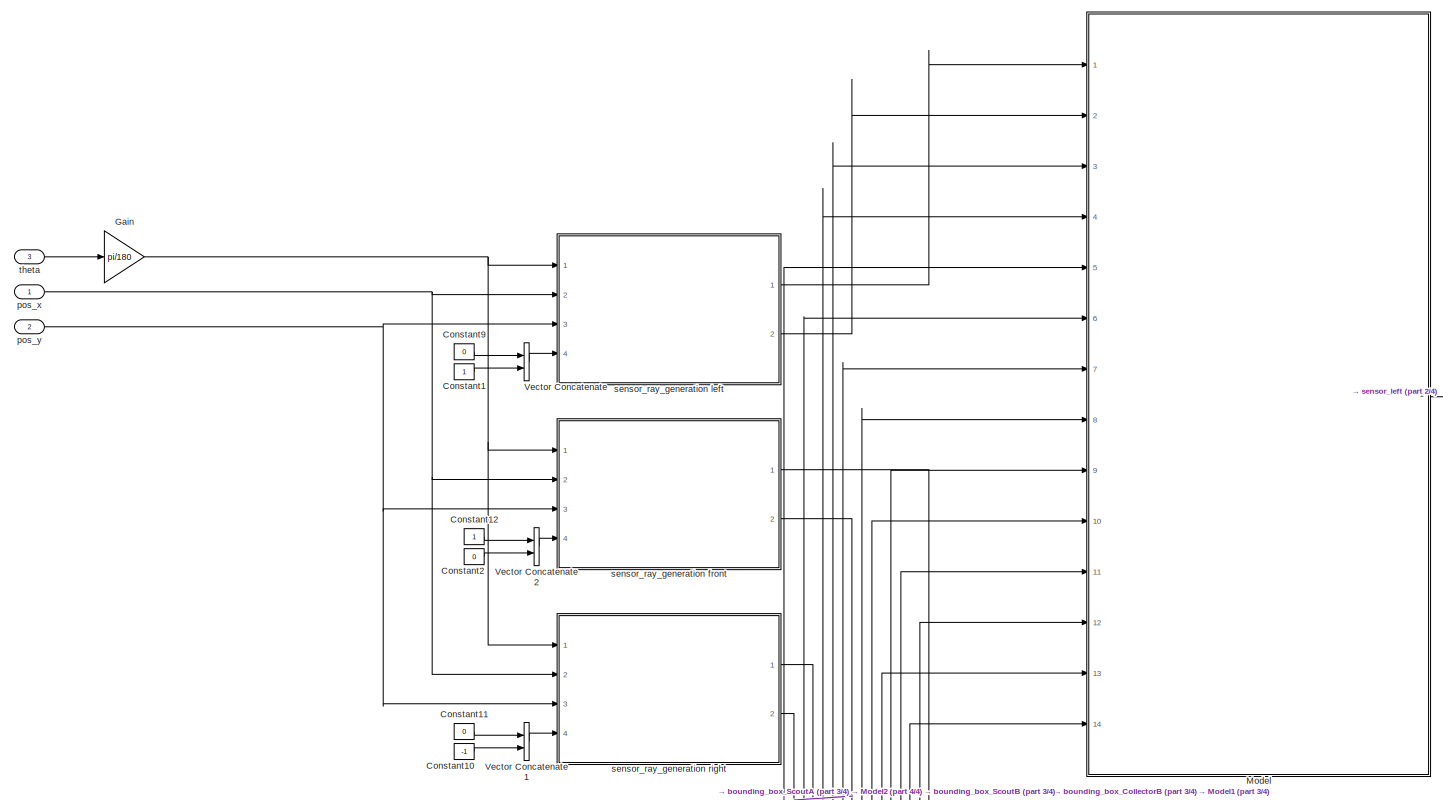
[diagram: root canvas - part 1/4, full width, top band]
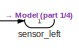
[diagram: root canvas - part 2/4, top right region]
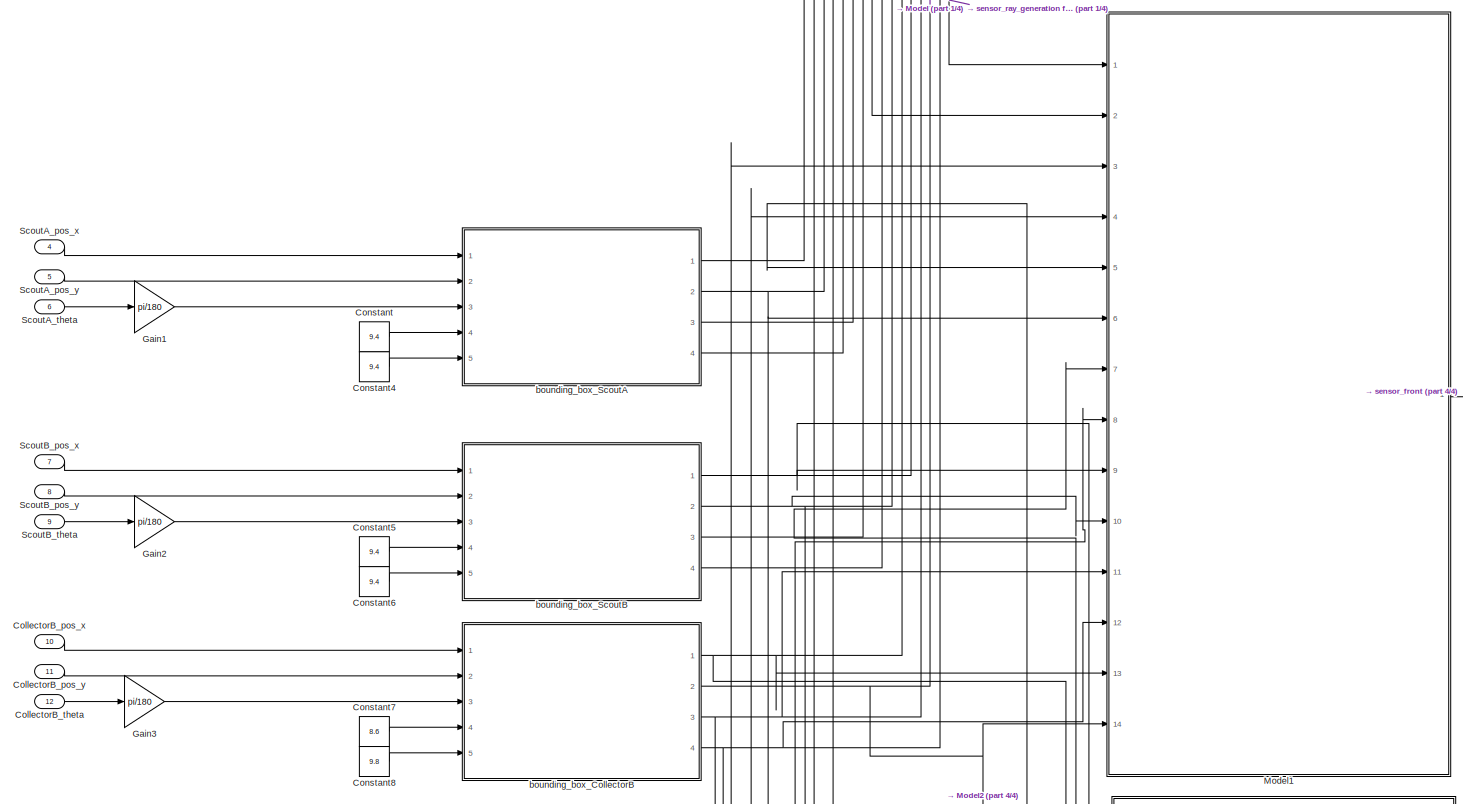
[diagram: root canvas - part 3/4, full width, middle band]
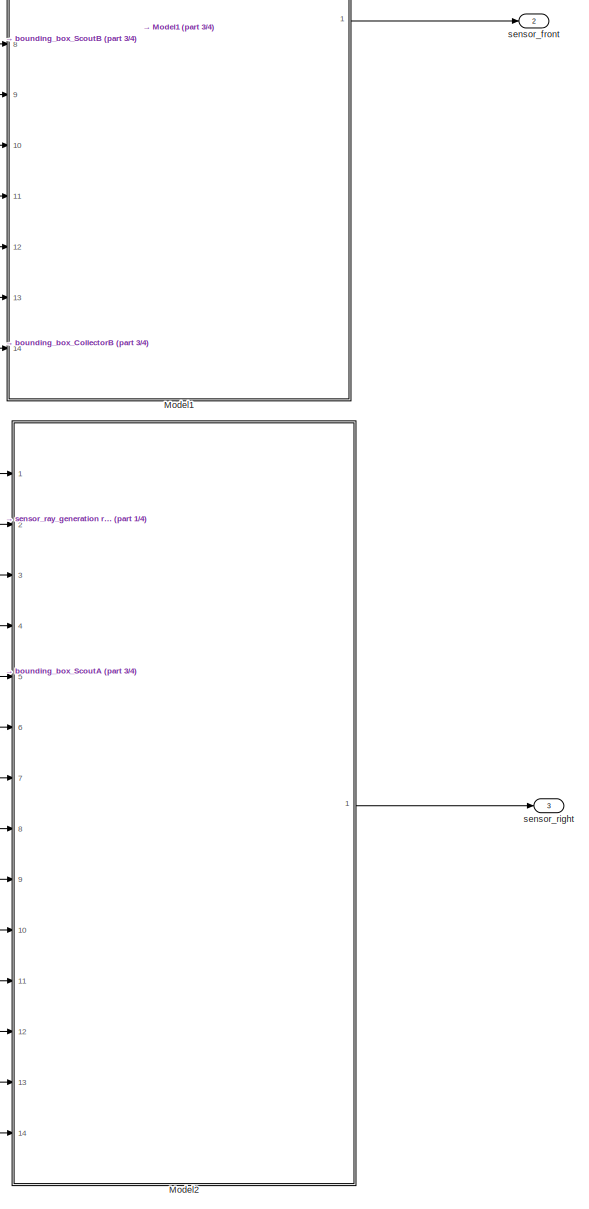
[diagram: root canvas - part 4/4, bottom right region]
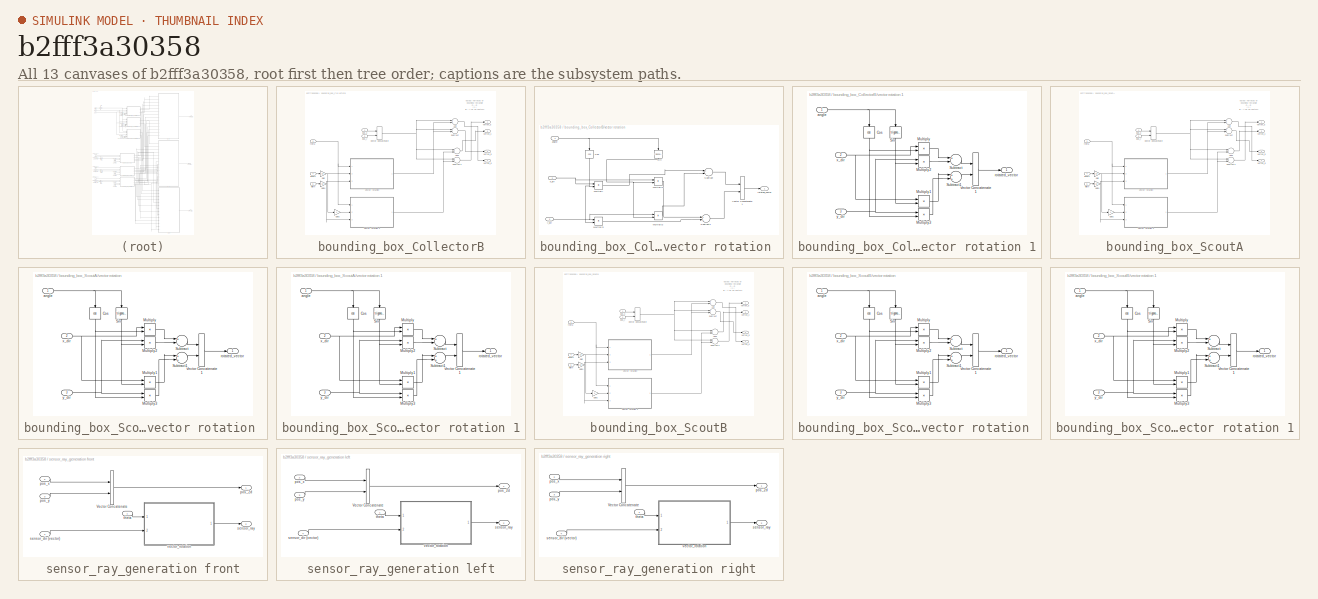
[diagram: thumbnail index - all 13 canvases of the model, root first then tree order]
MODEL slx_b2fff3a30358
KIND model
CONFIG AbsTol = auto
CONFIG EnableMultiTasking = off
CONFIG FixedStep = 0.01
CONFIG MaxStep = .001
CONFIG MinStep = auto
CONFIG RelTol = 1e-3
CONFIG SampleTimeConstraint = Unconstrained
CONFIG Solver = VariableStepAuto
CONFIG SolverName = VariableStepAuto
CONFIG StartTime = 0.0
CONFIG StopTime = 120
BLOCK [Inport] CollectorB_pos_x
  IconDisplay = Port number
  OutDataTypeStr = double
  Port = 10
  PortDimensions = 1
  SampleTime = 0
  SamplingMode = Sample based
  SignalType = real
BLOCK [Inport] CollectorB_pos_y
  IconDisplay = Port number
  OutDataTypeStr = double
  Port = 11
  PortDimensions = 1
  SampleTime = 0
  SamplingMode = Sample based
  SignalType = real
BLOCK [Inport] CollectorB_theta
  IconDisplay = Port number
  OutDataTypeStr = double
  Port = 12
  PortDimensions = 1
  SampleTime = 0
  SamplingMode = Sample based
  SignalType = real
BLOCK [Constant] Constant
  Value = 9.4
BLOCK [Constant] Constant1
BLOCK [Constant] Constant10
  Value = -1
BLOCK [Constant] Constant11
  Value = 0
BLOCK [Constant] Constant12
BLOCK [Constant] Constant2
  Value = 0
BLOCK [Constant] Constant4
  Value = 9.4
BLOCK [Constant] Constant5
  Value = 9.4
BLOCK [Constant] Constant6
  Value = 9.4
BLOCK [Constant] Constant7
  Value = 8.6
BLOCK [Constant] Constant8
  Value = 9.8
BLOCK [Constant] Constant9
  Value = 0
BLOCK [Gain] Gain
  Gain = pi/180
  OutDataTypeStr = Inherit: Inherit via internal rule
  ParamDataTypeStr = Inherit: Inherit via internal rule
  SaturateOnIntegerOverflow = off
BLOCK [Gain] Gain1
  Gain = pi/180
  OutDataTypeStr = Inherit: Inherit via internal rule
  ParamDataTypeStr = Inherit: Inherit via internal rule
  SaturateOnIntegerOverflow = off
BLOCK [Gain] Gain2
  Gain = pi/180
  OutDataTypeStr = Inherit: Inherit via internal rule
  ParamDataTypeStr = Inherit: Inherit via internal rule
  SaturateOnIntegerOverflow = off
BLOCK [Gain] Gain3
  Gain = pi/180
  OutDataTypeStr = Inherit: Inherit via internal rule
  ParamDataTypeStr = Inherit: Inherit via internal rule
  SaturateOnIntegerOverflow = off
BLOCK [ModelReference] Model
  ModelNameDialog = prox_sensor_gen
  ModelReferenceVersion = 1.2
  Ports = [14, 1]
BLOCK [ModelReference] Model1
  ModelNameDialog = prox_sensor_gen
  ModelReferenceVersion = 1.2
  Ports = [14, 1]
BLOCK [ModelReference] Model2
  ModelNameDialog = prox_sensor_gen
  ModelReferenceVersion = 1.2
  Ports = [14, 1]
BLOCK [Inport] ScoutA_pos_x
  IconDisplay = Port number
  OutDataTypeStr = double
  Port = 4
  PortDimensions = 1
  SampleTime = 0
  SamplingMode = Sample based
  SignalType = real
BLOCK [Inport] ScoutA_pos_y
  IconDisplay = Port number
  OutDataTypeStr = double
  Port = 5
  PortDimensions = 1
  SampleTime = 0
  SamplingMode = Sample based
  SignalType = real
BLOCK [Inport] ScoutA_theta
  IconDisplay = Port number
  OutDataTypeStr = double
  Port = 6
  PortDimensions = 1
  SampleTime = 0
  SamplingMode = Sample based
  SignalType = real
BLOCK [Inport] ScoutB_pos_x
  IconDisplay = Port number
  OutDataTypeStr = double
  Port = 7
  PortDimensions = 1
  SampleTime = 0
  SamplingMode = Sample based
  SignalType = real
BLOCK [Inport] ScoutB_pos_y
  IconDisplay = Port number
  OutDataTypeStr = double
  Port = 8
  PortDimensions = 1
  SampleTime = 0
  SamplingMode = Sample based
  SignalType = real
BLOCK [Inport] ScoutB_theta
  IconDisplay = Port number
  OutDataTypeStr = double
  Port = 9
  PortDimensions = 1
  SampleTime = 0
  SamplingMode = Sample based
  SignalType = real
BLOCK [Concatenate] Vector Concatenate
  Ports = [2, 1]
BLOCK [Concatenate] Vector Concatenate1
  Ports = [2, 1]
BLOCK [Concatenate] Vector Concatenate2
  Ports = [2, 1]
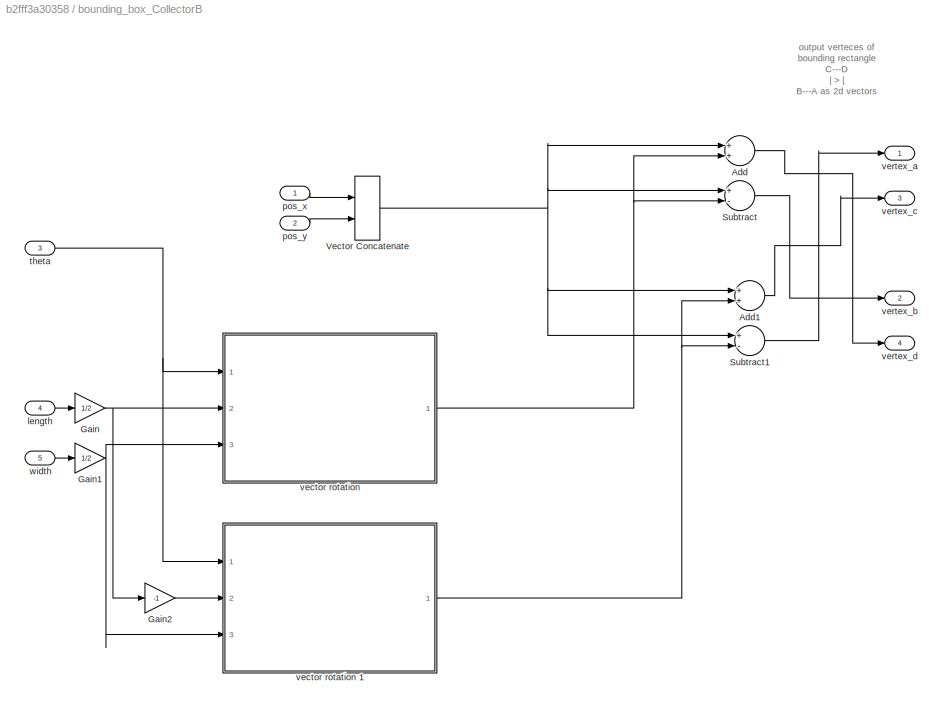
BLOCK [SubSystem] bounding_box_CollectorB
  Ports = [5, 4]
  RequestExecContextInheritance = off
BLOCK [Sum] bounding_box_CollectorB/Add
  InputSameDT = off
  OutDataTypeStr = Inherit: Inherit via internal rule
  Ports = [2, 1]
  SaturateOnIntegerOverflow = off
BLOCK [Sum] bounding_box_CollectorB/Add1
  InputSameDT = off
  OutDataTypeStr = Inherit: Inherit via internal rule
  Ports = [2, 1]
  SaturateOnIntegerOverflow = off
BLOCK [Gain] bounding_box_CollectorB/Gain
  Gain = 1/2
  OutDataTypeStr = Inherit: Inherit via internal rule
  ParamDataTypeStr = Inherit: Inherit via internal rule
  SaturateOnIntegerOverflow = off
BLOCK [Gain] bounding_box_CollectorB/Gain1
  Gain = 1/2
  OutDataTypeStr = Inherit: Inherit via internal rule
  ParamDataTypeStr = Inherit: Inherit via internal rule
  SaturateOnIntegerOverflow = off
BLOCK [Gain] bounding_box_CollectorB/Gain2
  Gain = -1
  OutDataTypeStr = Inherit: Inherit via internal rule
  ParamDataTypeStr = Inherit: Inherit via internal rule
  SaturateOnIntegerOverflow = off
BLOCK [Sum] bounding_box_CollectorB/Subtract
  InputSameDT = off
  Inputs = +-
  OutDataTypeStr = Inherit: Inherit via internal rule
  Ports = [2, 1]
  SaturateOnIntegerOverflow = off
BLOCK [Sum] bounding_box_CollectorB/Subtract1
  InputSameDT = off
  Inputs = +-
  OutDataTypeStr = Inherit: Inherit via internal rule
  Ports = [2, 1]
  SaturateOnIntegerOverflow = off
BLOCK [Concatenate] bounding_box_CollectorB/Vector Concatenate
  Ports = [2, 1]
BLOCK [Inport] bounding_box_CollectorB/length
  IconDisplay = Port number
  Port = 4
BLOCK [Inport] bounding_box_CollectorB/pos_x
  IconDisplay = Port number
BLOCK [Inport] bounding_box_CollectorB/pos_y
  IconDisplay = Port number
  Port = 2
BLOCK [Inport] bounding_box_CollectorB/theta
  IconDisplay = Port number
  Port = 3
BLOCK [SubSystem] bounding_box_CollectorB/vector rotation 
  Ports = [3, 1]
  RequestExecContextInheritance = off
BLOCK [Trigonometry] bounding_box_CollectorB/vector rotation /Cos
  Operator = cos
  Ports = [1, 1]
BLOCK [Product] bounding_box_CollectorB/vector rotation /Multiply
  InputSameDT = off
  OutDataTypeStr = Inherit: Inherit via internal rule
  Ports = [2, 1]
  RndMeth = Floor
  SaturateOnIntegerOverflow = off
BLOCK [Product] bounding_box_CollectorB/vector rotation /Multiply1
  InputSameDT = off
  OutDataTypeStr = Inherit: Inherit via internal rule
  Ports = [2, 1]
  RndMeth = Floor
  SaturateOnIntegerOverflow = off
BLOCK [Product] bounding_box_CollectorB/vector rotation /Multiply2
  InputSameDT = off
  OutDataTypeStr = Inherit: Inherit via internal rule
  Ports = [2, 1]
  RndMeth = Floor
  SaturateOnIntegerOverflow = off
BLOCK [Product] bounding_box_CollectorB/vector rotation /Multiply3
  InputSameDT = off
  OutDataTypeStr = Inherit: Inherit via internal rule
  Ports = [2, 1]
  RndMeth = Floor
  SaturateOnIntegerOverflow = off
BLOCK [Trigonometry] bounding_box_CollectorB/vector rotation /Sin
  Ports = [1, 1]
BLOCK [Sum] bounding_box_CollectorB/vector rotation /Subtract
  InputSameDT = off
  Inputs = +-
  OutDataTypeStr = Inherit: Inherit via internal rule
  Ports = [2, 1]
  SaturateOnIntegerOverflow = off
BLOCK [Sum] bounding_box_CollectorB/vector rotation /Subtract1
  InputSameDT = off
  OutDataTypeStr = Inherit: Inherit via internal rule
  Ports = [2, 1]
  SaturateOnIntegerOverflow = off
BLOCK [Concatenate] bounding_box_CollectorB/vector rotation /Vector Concatenate1
  Ports = [2, 1]
BLOCK [Inport] bounding_box_CollectorB/vector rotation /angle
  IconDisplay = Port number
BLOCK [Outport] bounding_box_CollectorB/vector rotation /rotated_vector 
  IconDisplay = Port number
BLOCK [Inport] bounding_box_CollectorB/vector rotation /x_dir
  IconDisplay = Port number
  Port = 2
BLOCK [Inport] bounding_box_CollectorB/vector rotation /y_dir
  IconDisplay = Port number
  Port = 3
BLOCK [SubSystem] bounding_box_CollectorB/vector rotation 1
  Ports = [3, 1]
  RequestExecContextInheritance = off
BLOCK [Trigonometry] bounding_box_CollectorB/vector rotation 1/Cos
  Operator = cos
  Ports = [1, 1]
BLOCK [Product] bounding_box_CollectorB/vector rotation 1/Multiply
  InputSameDT = off
  OutDataTypeStr = Inherit: Inherit via internal rule
  Ports = [2, 1]
  RndMeth = Floor
  SaturateOnIntegerOverflow = off
BLOCK [Product] bounding_box_CollectorB/vector rotation 1/Multiply1
  InputSameDT = off
  OutDataTypeStr = Inherit: Inherit via internal rule
  Ports = [2, 1]
  RndMeth = Floor
  SaturateOnIntegerOverflow = off
BLOCK [Product] bounding_box_CollectorB/vector rotation 1/Multiply2
  InputSameDT = off
  OutDataTypeStr = Inherit: Inherit via internal rule
  Ports = [2, 1]
  RndMeth = Floor
  SaturateOnIntegerOverflow = off
BLOCK [Product] bounding_box_CollectorB/vector rotation 1/Multiply3
  InputSameDT = off
  OutDataTypeStr = Inherit: Inherit via internal rule
  Ports = [2, 1]
  RndMeth = Floor
  SaturateOnIntegerOverflow = off
BLOCK [Trigonometry] bounding_box_CollectorB/vector rotation 1/Sin
  Ports = [1, 1]
BLOCK [Sum] bounding_box_CollectorB/vector rotation 1/Subtract
  InputSameDT = off
  Inputs = +-
  OutDataTypeStr = Inherit: Inherit via internal rule
  Ports = [2, 1]
  SaturateOnIntegerOverflow = off
BLOCK [Sum] bounding_box_CollectorB/vector rotation 1/Subtract1
  InputSameDT = off
  OutDataTypeStr = Inherit: Inherit via internal rule
  Ports = [2, 1]
  SaturateOnIntegerOverflow = off
BLOCK [Concatenate] bounding_box_CollectorB/vector rotation 1/Vector Concatenate1
  Ports = [2, 1]
BLOCK [Inport] bounding_box_CollectorB/vector rotation 1/angle
  IconDisplay = Port number
BLOCK [Outport] bounding_box_CollectorB/vector rotation 1/rotated_vector 
  IconDisplay = Port number
BLOCK [Inport] bounding_box_CollectorB/vector rotation 1/x_dir
  IconDisplay = Port number
  Port = 2
BLOCK [Inport] bounding_box_CollectorB/vector rotation 1/y_dir
  IconDisplay = Port number
  Port = 3
BLOCK [Outport] bounding_box_CollectorB/vertex_a
  IconDisplay = Port number
BLOCK [Outport] bounding_box_CollectorB/vertex_b
  IconDisplay = Port number
  Port = 2
BLOCK [Outport] bounding_box_CollectorB/vertex_c
  IconDisplay = Port number
  Port = 3
BLOCK [Outport] bounding_box_CollectorB/vertex_d
  IconDisplay = Port number
  Port = 4
BLOCK [Inport] bounding_box_CollectorB/width
  IconDisplay = Port number
  Port = 5
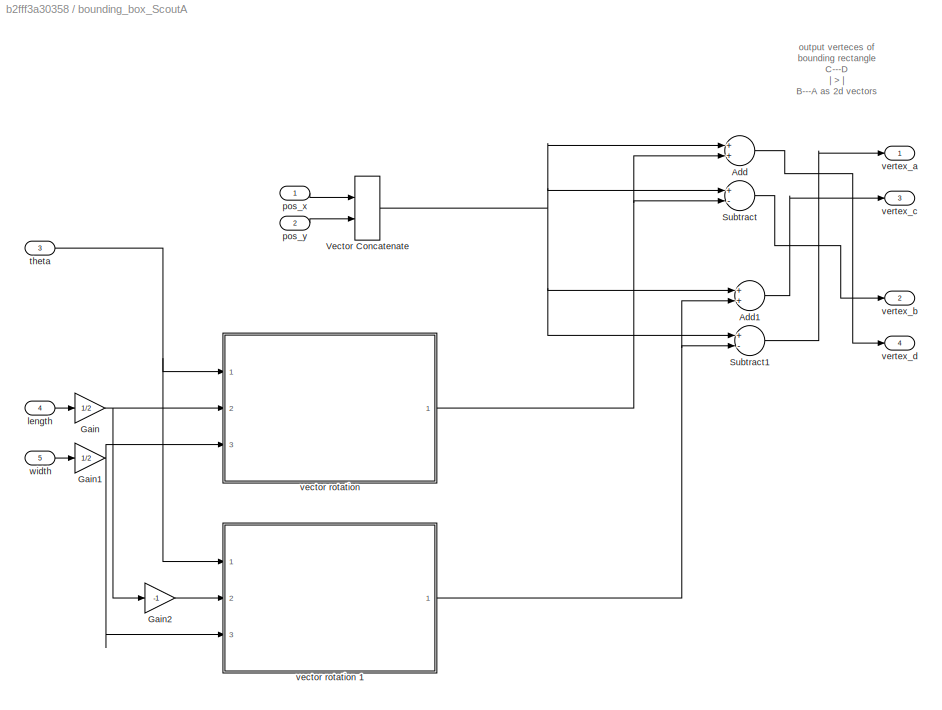
BLOCK [SubSystem] bounding_box_ScoutA
  Ports = [5, 4]
  RequestExecContextInheritance = off
BLOCK [Sum] bounding_box_ScoutA/Add
  InputSameDT = off
  OutDataTypeStr = Inherit: Inherit via internal rule
  Ports = [2, 1]
  SaturateOnIntegerOverflow = off
BLOCK [Sum] bounding_box_ScoutA/Add1
  InputSameDT = off
  OutDataTypeStr = Inherit: Inherit via internal rule
  Ports = [2, 1]
  SaturateOnIntegerOverflow = off
BLOCK [Gain] bounding_box_ScoutA/Gain
  Gain = 1/2
  OutDataTypeStr = Inherit: Inherit via internal rule
  ParamDataTypeStr = Inherit: Inherit via internal rule
  SaturateOnIntegerOverflow = off
BLOCK [Gain] bounding_box_ScoutA/Gain1
  Gain = 1/2
  OutDataTypeStr = Inherit: Inherit via internal rule
  ParamDataTypeStr = Inherit: Inherit via internal rule
  SaturateOnIntegerOverflow = off
BLOCK [Gain] bounding_box_ScoutA/Gain2
  Gain = -1
  OutDataTypeStr = Inherit: Inherit via internal rule
  ParamDataTypeStr = Inherit: Inherit via internal rule
  SaturateOnIntegerOverflow = off
BLOCK [Sum] bounding_box_ScoutA/Subtract
  InputSameDT = off
  Inputs = +-
  OutDataTypeStr = Inherit: Inherit via internal rule
  Ports = [2, 1]
  SaturateOnIntegerOverflow = off
BLOCK [Sum] bounding_box_ScoutA/Subtract1
  InputSameDT = off
  Inputs = +-
  OutDataTypeStr = Inherit: Inherit via internal rule
  Ports = [2, 1]
  SaturateOnIntegerOverflow = off
BLOCK [Concatenate] bounding_box_ScoutA/Vector Concatenate
  Ports = [2, 1]
BLOCK [Inport] bounding_box_ScoutA/length
  IconDisplay = Port number
  Port = 4
BLOCK [Inport] bounding_box_ScoutA/pos_x
  IconDisplay = Port number
BLOCK [Inport] bounding_box_ScoutA/pos_y
  IconDisplay = Port number
  Port = 2
BLOCK [Inport] bounding_box_ScoutA/theta
  IconDisplay = Port number
  Port = 3
BLOCK [SubSystem] bounding_box_ScoutA/vector rotation 
  Ports = [3, 1]
  RequestExecContextInheritance = off
BLOCK [Trigonometry] bounding_box_ScoutA/vector rotation /Cos
  Operator = cos
  Ports = [1, 1]
BLOCK [Product] bounding_box_ScoutA/vector rotation /Multiply
  InputSameDT = off
  OutDataTypeStr = Inherit: Inherit via internal rule
  Ports = [2, 1]
  RndMeth = Floor
  SaturateOnIntegerOverflow = off
BLOCK [Product] bounding_box_ScoutA/vector rotation /Multiply1
  InputSameDT = off
  OutDataTypeStr = Inherit: Inherit via internal rule
  Ports = [2, 1]
  RndMeth = Floor
  SaturateOnIntegerOverflow = off
BLOCK [Product] bounding_box_ScoutA/vector rotation /Multiply2
  InputSameDT = off
  OutDataTypeStr = Inherit: Inherit via internal rule
  Ports = [2, 1]
  RndMeth = Floor
  SaturateOnIntegerOverflow = off
BLOCK [Product] bounding_box_ScoutA/vector rotation /Multiply3
  InputSameDT = off
  OutDataTypeStr = Inherit: Inherit via internal rule
  Ports = [2, 1]
  RndMeth = Floor
  SaturateOnIntegerOverflow = off
BLOCK [Trigonometry] bounding_box_ScoutA/vector rotation /Sin
  Ports = [1, 1]
BLOCK [Sum] bounding_box_ScoutA/vector rotation /Subtract
  InputSameDT = off
  Inputs = +-
  OutDataTypeStr = Inherit: Inherit via internal rule
  Ports = [2, 1]
  SaturateOnIntegerOverflow = off
BLOCK [Sum] bounding_box_ScoutA/vector rotation /Subtract1
  InputSameDT = off
  OutDataTypeStr = Inherit: Inherit via internal rule
  Ports = [2, 1]
  SaturateOnIntegerOverflow = off
BLOCK [Concatenate] bounding_box_ScoutA/vector rotation /Vector Concatenate1
  Ports = [2, 1]
BLOCK [Inport] bounding_box_ScoutA/vector rotation /angle
  IconDisplay = Port number
BLOCK [Outport] bounding_box_ScoutA/vector rotation /rotated_vector 
  IconDisplay = Port number
BLOCK [Inport] bounding_box_ScoutA/vector rotation /x_dir
  IconDisplay = Port number
  Port = 2
BLOCK [Inport] bounding_box_ScoutA/vector rotation /y_dir
  IconDisplay = Port number
  Port = 3
BLOCK [SubSystem] bounding_box_ScoutA/vector rotation 1
  Ports = [3, 1]
  RequestExecContextInheritance = off
BLOCK [Trigonometry] bounding_box_ScoutA/vector rotation 1/Cos
  Operator = cos
  Ports = [1, 1]
BLOCK [Product] bounding_box_ScoutA/vector rotation 1/Multiply
  InputSameDT = off
  OutDataTypeStr = Inherit: Inherit via internal rule
  Ports = [2, 1]
  RndMeth = Floor
  SaturateOnIntegerOverflow = off
BLOCK [Product] bounding_box_ScoutA/vector rotation 1/Multiply1
  InputSameDT = off
  OutDataTypeStr = Inherit: Inherit via internal rule
  Ports = [2, 1]
  RndMeth = Floor
  SaturateOnIntegerOverflow = off
BLOCK [Product] bounding_box_ScoutA/vector rotation 1/Multiply2
  InputSameDT = off
  OutDataTypeStr = Inherit: Inherit via internal rule
  Ports = [2, 1]
  RndMeth = Floor
  SaturateOnIntegerOverflow = off
BLOCK [Product] bounding_box_ScoutA/vector rotation 1/Multiply3
  InputSameDT = off
  OutDataTypeStr = Inherit: Inherit via internal rule
  Ports = [2, 1]
  RndMeth = Floor
  SaturateOnIntegerOverflow = off
BLOCK [Trigonometry] bounding_box_ScoutA/vector rotation 1/Sin
  Ports = [1, 1]
BLOCK [Sum] bounding_box_ScoutA/vector rotation 1/Subtract
  InputSameDT = off
  Inputs = +-
  OutDataTypeStr = Inherit: Inherit via internal rule
  Ports = [2, 1]
  SaturateOnIntegerOverflow = off
BLOCK [Sum] bounding_box_ScoutA/vector rotation 1/Subtract1
  InputSameDT = off
  OutDataTypeStr = Inherit: Inherit via internal rule
  Ports = [2, 1]
  SaturateOnIntegerOverflow = off
BLOCK [Concatenate] bounding_box_ScoutA/vector rotation 1/Vector Concatenate1
  Ports = [2, 1]
BLOCK [Inport] bounding_box_ScoutA/vector rotation 1/angle
  IconDisplay = Port number
BLOCK [Outport] bounding_box_ScoutA/vector rotation 1/rotated_vector 
  IconDisplay = Port number
BLOCK [Inport] bounding_box_ScoutA/vector rotation 1/x_dir
  IconDisplay = Port number
  Port = 2
BLOCK [Inport] bounding_box_ScoutA/vector rotation 1/y_dir
  IconDisplay = Port number
  Port = 3
BLOCK [Outport] bounding_box_ScoutA/vertex_a
  IconDisplay = Port number
BLOCK [Outport] bounding_box_ScoutA/vertex_b
  IconDisplay = Port number
  Port = 2
BLOCK [Outport] bounding_box_ScoutA/vertex_c
  IconDisplay = Port number
  Port = 3
BLOCK [Outport] bounding_box_ScoutA/vertex_d
  IconDisplay = Port number
  Port = 4
BLOCK [Inport] bounding_box_ScoutA/width
  IconDisplay = Port number
  Port = 5
BLOCK [SubSystem] bounding_box_ScoutB
  Ports = [5, 4]
  RequestExecContextInheritance = off
BLOCK [Sum] bounding_box_ScoutB/Add
  InputSameDT = off
  OutDataTypeStr = Inherit: Inherit via internal rule
  Ports = [2, 1]
  SaturateOnIntegerOverflow = off
BLOCK [Sum] bounding_box_ScoutB/Add1
  InputSameDT = off
  OutDataTypeStr = Inherit: Inherit via internal rule
  Ports = [2, 1]
  SaturateOnIntegerOverflow = off
BLOCK [Gain] bounding_box_ScoutB/Gain
  Gain = 1/2
  OutDataTypeStr = Inherit: Inherit via internal rule
  ParamDataTypeStr = Inherit: Inherit via internal rule
  SaturateOnIntegerOverflow = off
BLOCK [Gain] bounding_box_ScoutB/Gain1
  Gain = 1/2
  OutDataTypeStr = Inherit: Inherit via internal rule
  ParamDataTypeStr = Inherit: Inherit via internal rule
  SaturateOnIntegerOverflow = off
BLOCK [Gain] bounding_box_ScoutB/Gain2
  Gain = -1
  OutDataTypeStr = Inherit: Inherit via internal rule
  ParamDataTypeStr = Inherit: Inherit via internal rule
  SaturateOnIntegerOverflow = off
BLOCK [Sum] bounding_box_ScoutB/Subtract
  InputSameDT = off
  Inputs = +-
  OutDataTypeStr = Inherit: Inherit via internal rule
  Ports = [2, 1]
  SaturateOnIntegerOverflow = off
BLOCK [Sum] bounding_box_ScoutB/Subtract1
  InputSameDT = off
  Inputs = +-
  OutDataTypeStr = Inherit: Inherit via internal rule
  Ports = [2, 1]
  SaturateOnIntegerOverflow = off
BLOCK [Concatenate] bounding_box_ScoutB/Vector Concatenate
  Ports = [2, 1]
BLOCK [Inport] bounding_box_ScoutB/length
  IconDisplay = Port number
  Port = 4
BLOCK [Inport] bounding_box_ScoutB/pos_x
  IconDisplay = Port number
BLOCK [Inport] bounding_box_ScoutB/pos_y
  IconDisplay = Port number
  Port = 2
BLOCK [Inport] bounding_box_ScoutB/theta
  IconDisplay = Port number
  Port = 3
BLOCK [SubSystem] bounding_box_ScoutB/vector rotation 
  Ports = [3, 1]
  RequestExecContextInheritance = off
BLOCK [Trigonometry] bounding_box_ScoutB/vector rotation /Cos
  Operator = cos
  Ports = [1, 1]
BLOCK [Product] bounding_box_ScoutB/vector rotation /Multiply
  InputSameDT = off
  OutDataTypeStr = Inherit: Inherit via internal rule
  Ports = [2, 1]
  RndMeth = Floor
  SaturateOnIntegerOverflow = off
BLOCK [Product] bounding_box_ScoutB/vector rotation /Multiply1
  InputSameDT = off
  OutDataTypeStr = Inherit: Inherit via internal rule
  Ports = [2, 1]
  RndMeth = Floor
  SaturateOnIntegerOverflow = off
BLOCK [Product] bounding_box_ScoutB/vector rotation /Multiply2
  InputSameDT = off
  OutDataTypeStr = Inherit: Inherit via internal rule
  Ports = [2, 1]
  RndMeth = Floor
  SaturateOnIntegerOverflow = off
BLOCK [Product] bounding_box_ScoutB/vector rotation /Multiply3
  InputSameDT = off
  OutDataTypeStr = Inherit: Inherit via internal rule
  Ports = [2, 1]
  RndMeth = Floor
  SaturateOnIntegerOverflow = off
BLOCK [Trigonometry] bounding_box_ScoutB/vector rotation /Sin
  Ports = [1, 1]
BLOCK [Sum] bounding_box_ScoutB/vector rotation /Subtract
  InputSameDT = off
  Inputs = +-
  OutDataTypeStr = Inherit: Inherit via internal rule
  Ports = [2, 1]
  SaturateOnIntegerOverflow = off
BLOCK [Sum] bounding_box_ScoutB/vector rotation /Subtract1
  InputSameDT = off
  OutDataTypeStr = Inherit: Inherit via internal rule
  Ports = [2, 1]
  SaturateOnIntegerOverflow = off
BLOCK [Concatenate] bounding_box_ScoutB/vector rotation /Vector Concatenate1
  Ports = [2, 1]
BLOCK [Inport] bounding_box_ScoutB/vector rotation /angle
  IconDisplay = Port number
BLOCK [Outport] bounding_box_ScoutB/vector rotation /rotated_vector 
  IconDisplay = Port number
BLOCK [Inport] bounding_box_ScoutB/vector rotation /x_dir
  IconDisplay = Port number
  Port = 2
BLOCK [Inport] bounding_box_ScoutB/vector rotation /y_dir
  IconDisplay = Port number
  Port = 3
BLOCK [SubSystem] bounding_box_ScoutB/vector rotation 1
  Ports = [3, 1]
  RequestExecContextInheritance = off
BLOCK [Trigonometry] bounding_box_ScoutB/vector rotation 1/Cos
  Operator = cos
  Ports = [1, 1]
BLOCK [Product] bounding_box_ScoutB/vector rotation 1/Multiply
  InputSameDT = off
  OutDataTypeStr = Inherit: Inherit via internal rule
  Ports = [2, 1]
  RndMeth = Floor
  SaturateOnIntegerOverflow = off
BLOCK [Product] bounding_box_ScoutB/vector rotation 1/Multiply1
  InputSameDT = off
  OutDataTypeStr = Inherit: Inherit via internal rule
  Ports = [2, 1]
  RndMeth = Floor
  SaturateOnIntegerOverflow = off
BLOCK [Product] bounding_box_ScoutB/vector rotation 1/Multiply2
  InputSameDT = off
  OutDataTypeStr = Inherit: Inherit via internal rule
  Ports = [2, 1]
  RndMeth = Floor
  SaturateOnIntegerOverflow = off
BLOCK [Product] bounding_box_ScoutB/vector rotation 1/Multiply3
  InputSameDT = off
  OutDataTypeStr = Inherit: Inherit via internal rule
  Ports = [2, 1]
  RndMeth = Floor
  SaturateOnIntegerOverflow = off
BLOCK [Trigonometry] bounding_box_ScoutB/vector rotation 1/Sin
  Ports = [1, 1]
BLOCK [Sum] bounding_box_ScoutB/vector rotation 1/Subtract
  InputSameDT = off
  Inputs = +-
  OutDataTypeStr = Inherit: Inherit via internal rule
  Ports = [2, 1]
  SaturateOnIntegerOverflow = off
BLOCK [Sum] bounding_box_ScoutB/vector rotation 1/Subtract1
  InputSameDT = off
  OutDataTypeStr = Inherit: Inherit via internal rule
  Ports = [2, 1]
  SaturateOnIntegerOverflow = off
BLOCK [Concatenate] bounding_box_ScoutB/vector rotation 1/Vector Concatenate1
  Ports = [2, 1]
BLOCK [Inport] bounding_box_ScoutB/vector rotation 1/angle
  IconDisplay = Port number
BLOCK [Outport] bounding_box_ScoutB/vector rotation 1/rotated_vector 
  IconDisplay = Port number
BLOCK [Inport] bounding_box_ScoutB/vector rotation 1/x_dir
  IconDisplay = Port number
  Port = 2
BLOCK [Inport] bounding_box_ScoutB/vector rotation 1/y_dir
  IconDisplay = Port number
  Port = 3
BLOCK [Outport] bounding_box_ScoutB/vertex_a
  IconDisplay = Port number
BLOCK [Outport] bounding_box_ScoutB/vertex_b
  IconDisplay = Port number
  Port = 2
BLOCK [Outport] bounding_box_ScoutB/vertex_c
  IconDisplay = Port number
  Port = 3
BLOCK [Outport] bounding_box_ScoutB/vertex_d
  IconDisplay = Port number
  Port = 4
BLOCK [Inport] bounding_box_ScoutB/width
  IconDisplay = Port number
  Port = 5
BLOCK [Inport] pos_x
  IconDisplay = Port number
  OutDataTypeStr = double
  PortDimensions = 1
  SampleTime = 0
  SamplingMode = Sample based
  SignalType = real
BLOCK [Inport] pos_y
  IconDisplay = Port number
  OutDataTypeStr = double
  Port = 2
  PortDimensions = 1
  SampleTime = 0
  SamplingMode = Sample based
  SignalType = real
BLOCK [Outport] sensor_front
  IconDisplay = Port number
  OutDataTypeStr = double
  Port = 2
  PortDimensions = 1
  SampleTime = 0
  SamplingMode = Sample based
  SignalType = real
BLOCK [Outport] sensor_left
  IconDisplay = Port number
  OutDataTypeStr = double
  PortDimensions = 1
  SampleTime = 0
  SamplingMode = Sample based
  SignalType = real
BLOCK [SubSystem] sensor_ray_generation front
  Ports = [4, 2]
  RequestExecContextInheritance = off
BLOCK [Concatenate] sensor_ray_generation front/Vector Concatenate
  Ports = [2, 1]
BLOCK [Outport] sensor_ray_generation front/pos_2d
  IconDisplay = Port number
BLOCK [Inport] sensor_ray_generation front/pos_x
  IconDisplay = Port number
  Port = 2
BLOCK [Inport] sensor_ray_generation front/pos_y
  IconDisplay = Port number
  Port = 3
BLOCK [Inport] sensor_ray_generation front/sensor_dir (vector) 
  IconDisplay = Port number
  Port = 4
BLOCK [Outport] sensor_ray_generation front/sensor_ray 
  IconDisplay = Port number
  Port = 2
BLOCK [Inport] sensor_ray_generation front/theta 
  IconDisplay = Port number
BLOCK [ModelReference] sensor_ray_generation front/vector_rotation
  ModelNameDialog = vector_rotation
  ModelReferenceVersion = 1.21
  Ports = [2, 1]
BLOCK [SubSystem] sensor_ray_generation left
  Ports = [4, 2]
  RequestExecContextInheritance = off
BLOCK [Concatenate] sensor_ray_generation left/Vector Concatenate
  Ports = [2, 1]
BLOCK [Outport] sensor_ray_generation left/pos_2d
  IconDisplay = Port number
BLOCK [Inport] sensor_ray_generation left/pos_x
  IconDisplay = Port number
  Port = 2
BLOCK [Inport] sensor_ray_generation left/pos_y
  IconDisplay = Port number
  Port = 3
BLOCK [Inport] sensor_ray_generation left/sensor_dir (vector) 
  IconDisplay = Port number
  Port = 4
BLOCK [Outport] sensor_ray_generation left/sensor_ray 
  IconDisplay = Port number
  Port = 2
BLOCK [Inport] sensor_ray_generation left/theta 
  IconDisplay = Port number
BLOCK [ModelReference] sensor_ray_generation left/vector_rotation
  ModelNameDialog = vector_rotation
  ModelReferenceVersion = 1.21
  Ports = [2, 1]
BLOCK [SubSystem] sensor_ray_generation right
  Ports = [4, 2]
  RequestExecContextInheritance = off
BLOCK [Concatenate] sensor_ray_generation right/Vector Concatenate
  Ports = [2, 1]
BLOCK [Outport] sensor_ray_generation right/pos_2d
  IconDisplay = Port number
BLOCK [Inport] sensor_ray_generation right/pos_x
  IconDisplay = Port number
  Port = 2
BLOCK [Inport] sensor_ray_generation right/pos_y
  IconDisplay = Port number
  Port = 3
BLOCK [Inport] sensor_ray_generation right/sensor_dir (vector) 
  IconDisplay = Port number
  Port = 4
BLOCK [Outport] sensor_ray_generation right/sensor_ray 
  IconDisplay = Port number
  Port = 2
BLOCK [Inport] sensor_ray_generation right/theta 
  IconDisplay = Port number
BLOCK [ModelReference] sensor_ray_generation right/vector_rotation
  ModelNameDialog = vector_rotation
  ModelReferenceVersion = 1.21
  Ports = [2, 1]
BLOCK [Outport] sensor_right 
  IconDisplay = Port number
  OutDataTypeStr = double
  Port = 3
  PortDimensions = 1
  SampleTime = 0
  SamplingMode = Sample based
  SignalType = real
BLOCK [Inport] theta
  IconDisplay = Port number
  OutDataTypeStr = double
  Port = 3
  PortDimensions = 1
  SampleTime = 0
  SamplingMode = Sample based
  SignalType = real
ANNOTATION bounding_box_CollectorB: output verteces of bounding rectangle C---D | > | B---A as 2d vectors
ANNOTATION bounding_box_ScoutA: output verteces of bounding rectangle C---D | > | B---A as 2d vectors
ANNOTATION bounding_box_ScoutB: output verteces of bounding rectangle C---D | > | B---A as 2d vectors
LINE CollectorB_pos_x:1 -> bounding_box_CollectorB:1
LINE CollectorB_pos_y:1 -> bounding_box_CollectorB:2
LINE CollectorB_theta:1 -> Gain3:1
LINE Constant10:1 -> Vector Concatenate1:2
LINE Constant11:1 -> Vector Concatenate1:1
LINE Constant12:1 -> Vector Concatenate2:1
LINE Constant1:1 -> Vector Concatenate:2
LINE Constant2:1 -> Vector Concatenate2:2
LINE Constant4:1 -> bounding_box_ScoutA:5
LINE Constant5:1 -> bounding_box_ScoutB:4
LINE Constant6:1 -> bounding_box_ScoutB:5
LINE Constant7:1 -> bounding_box_CollectorB:4
LINE Constant8:1 -> bounding_box_CollectorB:5
LINE Constant9:1 -> Vector Concatenate:1
LINE Constant:1 -> bounding_box_ScoutA:4
LINE Gain1:1 -> bounding_box_ScoutA:3
LINE Gain2:1 -> bounding_box_ScoutB:3
LINE Gain3:1 -> bounding_box_CollectorB:3
NET Gain:1 -> sensor_ray_generation front:1, sensor_ray_generation left:1, sensor_ray_generation right:1
LINE Model1:1 -> sensor_front:1
LINE Model2:1 -> sensor_right :1
LINE Model:1 -> sensor_left:1
LINE ScoutA_pos_x:1 -> bounding_box_ScoutA:1
LINE ScoutA_pos_y:1 -> bounding_box_ScoutA:2
LINE ScoutA_theta:1 -> Gain1:1
LINE ScoutB_pos_x:1 -> bounding_box_ScoutB:1
LINE ScoutB_pos_y:1 -> bounding_box_ScoutB:2
LINE ScoutB_theta:1 -> Gain2:1
LINE Vector Concatenate1:1 -> sensor_ray_generation right:4
LINE Vector Concatenate2:1 -> sensor_ray_generation front:4
LINE Vector Concatenate:1 -> sensor_ray_generation left:4
LINE bounding_box_CollectorB/Add1:1 -> bounding_box_CollectorB/vertex_c:1
LINE bounding_box_CollectorB/Add:1 -> bounding_box_CollectorB/vertex_d:1
NET bounding_box_CollectorB/Gain1:1 -> bounding_box_CollectorB/vector rotation 1:3, bounding_box_CollectorB/vector rotation :3
LINE bounding_box_CollectorB/Gain2:1 -> bounding_box_CollectorB/vector rotation 1:2
NET bounding_box_CollectorB/Gain:1 -> bounding_box_CollectorB/Gain2:1, bounding_box_CollectorB/vector rotation :2
LINE bounding_box_CollectorB/Subtract1:1 -> bounding_box_CollectorB/vertex_a:1
LINE bounding_box_CollectorB/Subtract:1 -> bounding_box_CollectorB/vertex_b:1
NET bounding_box_CollectorB/Vector Concatenate:1 -> bounding_box_CollectorB/Add1:1, bounding_box_CollectorB/Add:1, bounding_box_CollectorB/Subtract1:1, bounding_box_CollectorB/Subtract:1
LINE bounding_box_CollectorB/length:1 -> bounding_box_CollectorB/Gain:1
LINE bounding_box_CollectorB/pos_x:1 -> bounding_box_CollectorB/Vector Concatenate:1
LINE bounding_box_CollectorB/pos_y:1 -> bounding_box_CollectorB/Vector Concatenate:2
NET bounding_box_CollectorB/theta:1 -> bounding_box_CollectorB/vector rotation 1:1, bounding_box_CollectorB/vector rotation :1
NET bounding_box_CollectorB/vector rotation /Cos:1 -> bounding_box_CollectorB/vector rotation /Multiply3:2, bounding_box_CollectorB/vector rotation /Multiply:2
LINE bounding_box_CollectorB/vector rotation /Multiply1:1 -> bounding_box_CollectorB/vector rotation /Subtract1:1
LINE bounding_box_CollectorB/vector rotation /Multiply2:1 -> bounding_box_CollectorB/vector rotation /Subtract:2
LINE bounding_box_CollectorB/vector rotation /Multiply3:1 -> bounding_box_CollectorB/vector rotation /Subtract1:2
LINE bounding_box_CollectorB/vector rotation /Multiply:1 -> bounding_box_CollectorB/vector rotation /Subtract:1
NET bounding_box_CollectorB/vector rotation /Sin:1 -> bounding_box_CollectorB/vector rotation /Multiply1:2, bounding_box_CollectorB/vector rotation /Multiply2:2
LINE bounding_box_CollectorB/vector rotation /Subtract1:1 -> bounding_box_CollectorB/vector rotation /Vector Concatenate1:2
LINE bounding_box_CollectorB/vector rotation /Subtract:1 -> bounding_box_CollectorB/vector rotation /Vector Concatenate1:1
LINE bounding_box_CollectorB/vector rotation /Vector Concatenate1:1 -> bounding_box_CollectorB/vector rotation /rotated_vector :1
NET bounding_box_CollectorB/vector rotation /angle:1 -> bounding_box_CollectorB/vector rotation /Cos:1, bounding_box_CollectorB/vector rotation /Sin:1
NET bounding_box_CollectorB/vector rotation /x_dir:1 -> bounding_box_CollectorB/vector rotation /Multiply1:1, bounding_box_CollectorB/vector rotation /Multiply:1
NET bounding_box_CollectorB/vector rotation /y_dir:1 -> bounding_box_CollectorB/vector rotation /Multiply2:1, bounding_box_CollectorB/vector rotation /Multiply3:1
NET bounding_box_CollectorB/vector rotation 1/Cos:1 -> bounding_box_CollectorB/vector rotation 1/Multiply3:2, bounding_box_CollectorB/vector rotation 1/Multiply:2
LINE bounding_box_CollectorB/vector rotation 1/Multiply1:1 -> bounding_box_CollectorB/vector rotation 1/Subtract1:1
LINE bounding_box_CollectorB/vector rotation 1/Multiply2:1 -> bounding_box_CollectorB/vector rotation 1/Subtract:2
LINE bounding_box_CollectorB/vector rotation 1/Multiply3:1 -> bounding_box_CollectorB/vector rotation 1/Subtract1:2
LINE bounding_box_CollectorB/vector rotation 1/Multiply:1 -> bounding_box_CollectorB/vector rotation 1/Subtract:1
NET bounding_box_CollectorB/vector rotation 1/Sin:1 -> bounding_box_CollectorB/vector rotation 1/Multiply1:2, bounding_box_CollectorB/vector rotation 1/Multiply2:2
LINE bounding_box_CollectorB/vector rotation 1/Subtract1:1 -> bounding_box_CollectorB/vector rotation 1/Vector Concatenate1:2
LINE bounding_box_CollectorB/vector rotation 1/Subtract:1 -> bounding_box_CollectorB/vector rotation 1/Vector Concatenate1:1
LINE bounding_box_CollectorB/vector rotation 1/Vector Concatenate1:1 -> bounding_box_CollectorB/vector rotation 1/rotated_vector :1
NET bounding_box_CollectorB/vector rotation 1/angle:1 -> bounding_box_CollectorB/vector rotation 1/Cos:1, bounding_box_CollectorB/vector rotation 1/Sin:1
NET bounding_box_CollectorB/vector rotation 1/x_dir:1 -> bounding_box_CollectorB/vector rotation 1/Multiply1:1, bounding_box_CollectorB/vector rotation 1/Multiply:1
NET bounding_box_CollectorB/vector rotation 1/y_dir:1 -> bounding_box_CollectorB/vector rotation 1/Multiply2:1, bounding_box_CollectorB/vector rotation 1/Multiply3:1
NET bounding_box_CollectorB/vector rotation 1:1 -> bounding_box_CollectorB/Add1:2, bounding_box_CollectorB/Subtract1:2
NET bounding_box_CollectorB/vector rotation :1 -> bounding_box_CollectorB/Add:2, bounding_box_CollectorB/Subtract:2
LINE bounding_box_CollectorB/width:1 -> bounding_box_CollectorB/Gain1:1
NET bounding_box_CollectorB:1 -> Model1:13, Model2:13, Model:13
NET bounding_box_CollectorB:2 -> Model1:14, Model2:14, Model:14
NET bounding_box_CollectorB:3 -> Model1:11, Model2:11, Model:11
NET bounding_box_CollectorB:4 -> Model1:12, Model2:12, Model:12
LINE bounding_box_ScoutA/Add1:1 -> bounding_box_ScoutA/vertex_c:1
LINE bounding_box_ScoutA/Add:1 -> bounding_box_ScoutA/vertex_d:1
NET bounding_box_ScoutA/Gain1:1 -> bounding_box_ScoutA/vector rotation 1:3, bounding_box_ScoutA/vector rotation :3
LINE bounding_box_ScoutA/Gain2:1 -> bounding_box_ScoutA/vector rotation 1:2
NET bounding_box_ScoutA/Gain:1 -> bounding_box_ScoutA/Gain2:1, bounding_box_ScoutA/vector rotation :2
LINE bounding_box_ScoutA/Subtract1:1 -> bounding_box_ScoutA/vertex_a:1
LINE bounding_box_ScoutA/Subtract:1 -> bounding_box_ScoutA/vertex_b:1
NET bounding_box_ScoutA/Vector Concatenate:1 -> bounding_box_ScoutA/Add1:1, bounding_box_ScoutA/Add:1, bounding_box_ScoutA/Subtract1:1, bounding_box_ScoutA/Subtract:1
LINE bounding_box_ScoutA/length:1 -> bounding_box_ScoutA/Gain:1
LINE bounding_box_ScoutA/pos_x:1 -> bounding_box_ScoutA/Vector Concatenate:1
LINE bounding_box_ScoutA/pos_y:1 -> bounding_box_ScoutA/Vector Concatenate:2
NET bounding_box_ScoutA/theta:1 -> bounding_box_ScoutA/vector rotation 1:1, bounding_box_ScoutA/vector rotation :1
NET bounding_box_ScoutA/vector rotation /Cos:1 -> bounding_box_ScoutA/vector rotation /Multiply3:2, bounding_box_ScoutA/vector rotation /Multiply:2
LINE bounding_box_ScoutA/vector rotation /Multiply1:1 -> bounding_box_ScoutA/vector rotation /Subtract1:1
LINE bounding_box_ScoutA/vector rotation /Multiply2:1 -> bounding_box_ScoutA/vector rotation /Subtract:2
LINE bounding_box_ScoutA/vector rotation /Multiply3:1 -> bounding_box_ScoutA/vector rotation /Subtract1:2
LINE bounding_box_ScoutA/vector rotation /Multiply:1 -> bounding_box_ScoutA/vector rotation /Subtract:1
NET bounding_box_ScoutA/vector rotation /Sin:1 -> bounding_box_ScoutA/vector rotation /Multiply1:2, bounding_box_ScoutA/vector rotation /Multiply2:2
LINE bounding_box_ScoutA/vector rotation /Subtract1:1 -> bounding_box_ScoutA/vector rotation /Vector Concatenate1:2
LINE bounding_box_ScoutA/vector rotation /Subtract:1 -> bounding_box_ScoutA/vector rotation /Vector Concatenate1:1
LINE bounding_box_ScoutA/vector rotation /Vector Concatenate1:1 -> bounding_box_ScoutA/vector rotation /rotated_vector :1
NET bounding_box_ScoutA/vector rotation /angle:1 -> bounding_box_ScoutA/vector rotation /Cos:1, bounding_box_ScoutA/vector rotation /Sin:1
NET bounding_box_ScoutA/vector rotation /x_dir:1 -> bounding_box_ScoutA/vector rotation /Multiply1:1, bounding_box_ScoutA/vector rotation /Multiply:1
NET bounding_box_ScoutA/vector rotation /y_dir:1 -> bounding_box_ScoutA/vector rotation /Multiply2:1, bounding_box_ScoutA/vector rotation /Multiply3:1
NET bounding_box_ScoutA/vector rotation 1/Cos:1 -> bounding_box_ScoutA/vector rotation 1/Multiply3:2, bounding_box_ScoutA/vector rotation 1/Multiply:2
LINE bounding_box_ScoutA/vector rotation 1/Multiply1:1 -> bounding_box_ScoutA/vector rotation 1/Subtract1:1
LINE bounding_box_ScoutA/vector rotation 1/Multiply2:1 -> bounding_box_ScoutA/vector rotation 1/Subtract:2
LINE bounding_box_ScoutA/vector rotation 1/Multiply3:1 -> bounding_box_ScoutA/vector rotation 1/Subtract1:2
LINE bounding_box_ScoutA/vector rotation 1/Multiply:1 -> bounding_box_ScoutA/vector rotation 1/Subtract:1
NET bounding_box_ScoutA/vector rotation 1/Sin:1 -> bounding_box_ScoutA/vector rotation 1/Multiply1:2, bounding_box_ScoutA/vector rotation 1/Multiply2:2
LINE bounding_box_ScoutA/vector rotation 1/Subtract1:1 -> bounding_box_ScoutA/vector rotation 1/Vector Concatenate1:2
LINE bounding_box_ScoutA/vector rotation 1/Subtract:1 -> bounding_box_ScoutA/vector rotation 1/Vector Concatenate1:1
LINE bounding_box_ScoutA/vector rotation 1/Vector Concatenate1:1 -> bounding_box_ScoutA/vector rotation 1/rotated_vector :1
NET bounding_box_ScoutA/vector rotation 1/angle:1 -> bounding_box_ScoutA/vector rotation 1/Cos:1, bounding_box_ScoutA/vector rotation 1/Sin:1
NET bounding_box_ScoutA/vector rotation 1/x_dir:1 -> bounding_box_ScoutA/vector rotation 1/Multiply1:1, bounding_box_ScoutA/vector rotation 1/Multiply:1
NET bounding_box_ScoutA/vector rotation 1/y_dir:1 -> bounding_box_ScoutA/vector rotation 1/Multiply2:1, bounding_box_ScoutA/vector rotation 1/Multiply3:1
NET bounding_box_ScoutA/vector rotation 1:1 -> bounding_box_ScoutA/Add1:2, bounding_box_ScoutA/Subtract1:2
NET bounding_box_ScoutA/vector rotation :1 -> bounding_box_ScoutA/Add:2, bounding_box_ScoutA/Subtract:2
LINE bounding_box_ScoutA/width:1 -> bounding_box_ScoutA/Gain1:1
NET bounding_box_ScoutA:1 -> Model1:5, Model2:5, Model:5
NET bounding_box_ScoutA:2 -> Model1:6, Model2:6, Model:6
NET bounding_box_ScoutA:3 -> Model1:3, Model2:3, Model:3
NET bounding_box_ScoutA:4 -> Model1:4, Model2:4, Model:4
LINE bounding_box_ScoutB/Add1:1 -> bounding_box_ScoutB/vertex_c:1
LINE bounding_box_ScoutB/Add:1 -> bounding_box_ScoutB/vertex_d:1
NET bounding_box_ScoutB/Gain1:1 -> bounding_box_ScoutB/vector rotation 1:3, bounding_box_ScoutB/vector rotation :3
LINE bounding_box_ScoutB/Gain2:1 -> bounding_box_ScoutB/vector rotation 1:2
NET bounding_box_ScoutB/Gain:1 -> bounding_box_ScoutB/Gain2:1, bounding_box_ScoutB/vector rotation :2
LINE bounding_box_ScoutB/Subtract1:1 -> bounding_box_ScoutB/vertex_a:1
LINE bounding_box_ScoutB/Subtract:1 -> bounding_box_ScoutB/vertex_b:1
NET bounding_box_ScoutB/Vector Concatenate:1 -> bounding_box_ScoutB/Add1:1, bounding_box_ScoutB/Add:1, bounding_box_ScoutB/Subtract1:1, bounding_box_ScoutB/Subtract:1
LINE bounding_box_ScoutB/length:1 -> bounding_box_ScoutB/Gain:1
LINE bounding_box_ScoutB/pos_x:1 -> bounding_box_ScoutB/Vector Concatenate:1
LINE bounding_box_ScoutB/pos_y:1 -> bounding_box_ScoutB/Vector Concatenate:2
NET bounding_box_ScoutB/theta:1 -> bounding_box_ScoutB/vector rotation 1:1, bounding_box_ScoutB/vector rotation :1
NET bounding_box_ScoutB/vector rotation /Cos:1 -> bounding_box_ScoutB/vector rotation /Multiply3:2, bounding_box_ScoutB/vector rotation /Multiply:2
LINE bounding_box_ScoutB/vector rotation /Multiply1:1 -> bounding_box_ScoutB/vector rotation /Subtract1:1
LINE bounding_box_ScoutB/vector rotation /Multiply2:1 -> bounding_box_ScoutB/vector rotation /Subtract:2
LINE bounding_box_ScoutB/vector rotation /Multiply3:1 -> bounding_box_ScoutB/vector rotation /Subtract1:2
LINE bounding_box_ScoutB/vector rotation /Multiply:1 -> bounding_box_ScoutB/vector rotation /Subtract:1
NET bounding_box_ScoutB/vector rotation /Sin:1 -> bounding_box_ScoutB/vector rotation /Multiply1:2, bounding_box_ScoutB/vector rotation /Multiply2:2
LINE bounding_box_ScoutB/vector rotation /Subtract1:1 -> bounding_box_ScoutB/vector rotation /Vector Concatenate1:2
LINE bounding_box_ScoutB/vector rotation /Subtract:1 -> bounding_box_ScoutB/vector rotation /Vector Concatenate1:1
LINE bounding_box_ScoutB/vector rotation /Vector Concatenate1:1 -> bounding_box_ScoutB/vector rotation /rotated_vector :1
NET bounding_box_ScoutB/vector rotation /angle:1 -> bounding_box_ScoutB/vector rotation /Cos:1, bounding_box_ScoutB/vector rotation /Sin:1
NET bounding_box_ScoutB/vector rotation /x_dir:1 -> bounding_box_ScoutB/vector rotation /Multiply1:1, bounding_box_ScoutB/vector rotation /Multiply:1
NET bounding_box_ScoutB/vector rotation /y_dir:1 -> bounding_box_ScoutB/vector rotation /Multiply2:1, bounding_box_ScoutB/vector rotation /Multiply3:1
NET bounding_box_ScoutB/vector rotation 1/Cos:1 -> bounding_box_ScoutB/vector rotation 1/Multiply3:2, bounding_box_ScoutB/vector rotation 1/Multiply:2
LINE bounding_box_ScoutB/vector rotation 1/Multiply1:1 -> bounding_box_ScoutB/vector rotation 1/Subtract1:1
LINE bounding_box_ScoutB/vector rotation 1/Multiply2:1 -> bounding_box_ScoutB/vector rotation 1/Subtract:2
LINE bounding_box_ScoutB/vector rotation 1/Multiply3:1 -> bounding_box_ScoutB/vector rotation 1/Subtract1:2
LINE bounding_box_ScoutB/vector rotation 1/Multiply:1 -> bounding_box_ScoutB/vector rotation 1/Subtract:1
NET bounding_box_ScoutB/vector rotation 1/Sin:1 -> bounding_box_ScoutB/vector rotation 1/Multiply1:2, bounding_box_ScoutB/vector rotation 1/Multiply2:2
LINE bounding_box_ScoutB/vector rotation 1/Subtract1:1 -> bounding_box_ScoutB/vector rotation 1/Vector Concatenate1:2
LINE bounding_box_ScoutB/vector rotation 1/Subtract:1 -> bounding_box_ScoutB/vector rotation 1/Vector Concatenate1:1
LINE bounding_box_ScoutB/vector rotation 1/Vector Concatenate1:1 -> bounding_box_ScoutB/vector rotation 1/rotated_vector :1
NET bounding_box_ScoutB/vector rotation 1/angle:1 -> bounding_box_ScoutB/vector rotation 1/Cos:1, bounding_box_ScoutB/vector rotation 1/Sin:1
NET bounding_box_ScoutB/vector rotation 1/x_dir:1 -> bounding_box_ScoutB/vector rotation 1/Multiply1:1, bounding_box_ScoutB/vector rotation 1/Multiply:1
NET bounding_box_ScoutB/vector rotation 1/y_dir:1 -> bounding_box_ScoutB/vector rotation 1/Multiply2:1, bounding_box_ScoutB/vector rotation 1/Multiply3:1
NET bounding_box_ScoutB/vector rotation 1:1 -> bounding_box_ScoutB/Add1:2, bounding_box_ScoutB/Subtract1:2
NET bounding_box_ScoutB/vector rotation :1 -> bounding_box_ScoutB/Add:2, bounding_box_ScoutB/Subtract:2
LINE bounding_box_ScoutB/width:1 -> bounding_box_ScoutB/Gain1:1
NET bounding_box_ScoutB:1 -> Model1:9, Model2:9, Model:9
NET bounding_box_ScoutB:2 -> Model1:10, Model2:10, Model:10
NET bounding_box_ScoutB:3 -> Model1:7, Model2:7, Model:7
NET bounding_box_ScoutB:4 -> Model1:8, Model2:8, Model:8
NET pos_x:1 -> sensor_ray_generation front:2, sensor_ray_generation left:2, sensor_ray_generation right:2
NET pos_y:1 -> sensor_ray_generation front:3, sensor_ray_generation left:3, sensor_ray_generation right:3
LINE sensor_ray_generation front/Vector Concatenate:1 -> sensor_ray_generation front/pos_2d:1
LINE sensor_ray_generation front/pos_x:1 -> sensor_ray_generation front/Vector Concatenate:1
LINE sensor_ray_generation front/pos_y:1 -> sensor_ray_generation front/Vector Concatenate:2
LINE sensor_ray_generation front/sensor_dir (vector) :1 -> sensor_ray_generation front/vector_rotation:2
LINE sensor_ray_generation front/theta :1 -> sensor_ray_generation front/vector_rotation:1
LINE sensor_ray_generation front/vector_rotation:1 -> sensor_ray_generation front/sensor_ray :1
LINE sensor_ray_generation front:1 -> Model1:1
LINE sensor_ray_generation front:2 -> Model1:2
LINE sensor_ray_generation left/Vector Concatenate:1 -> sensor_ray_generation left/pos_2d:1
LINE sensor_ray_generation left/pos_x:1 -> sensor_ray_generation left/Vector Concatenate:1
LINE sensor_ray_generation left/pos_y:1 -> sensor_ray_generation left/Vector Concatenate:2
LINE sensor_ray_generation left/sensor_dir (vector) :1 -> sensor_ray_generation left/vector_rotation:2
LINE sensor_ray_generation left/theta :1 -> sensor_ray_generation left/vector_rotation:1
LINE sensor_ray_generation left/vector_rotation:1 -> sensor_ray_generation left/sensor_ray :1
LINE sensor_ray_generation left:1 -> Model:1
LINE sensor_ray_generation left:2 -> Model:2
LINE sensor_ray_generation right/Vector Concatenate:1 -> sensor_ray_generation right/pos_2d:1
LINE sensor_ray_generation right/pos_x:1 -> sensor_ray_generation right/Vector Concatenate:1
LINE sensor_ray_generation right/pos_y:1 -> sensor_ray_generation right/Vector Concatenate:2
LINE sensor_ray_generation right/sensor_dir (vector) :1 -> sensor_ray_generation right/vector_rotation:2
LINE sensor_ray_generation right/theta :1 -> sensor_ray_generation right/vector_rotation:1
LINE sensor_ray_generation right/vector_rotation:1 -> sensor_ray_generation right/sensor_ray :1
LINE sensor_ray_generation right:1 -> Model2:1
LINE sensor_ray_generation right:2 -> Model2:2
LINE theta:1 -> Gain:1
note: NET lines group one-source signal fan-out (src -> all destinations, sorted); 1:1 wires keep LINE
